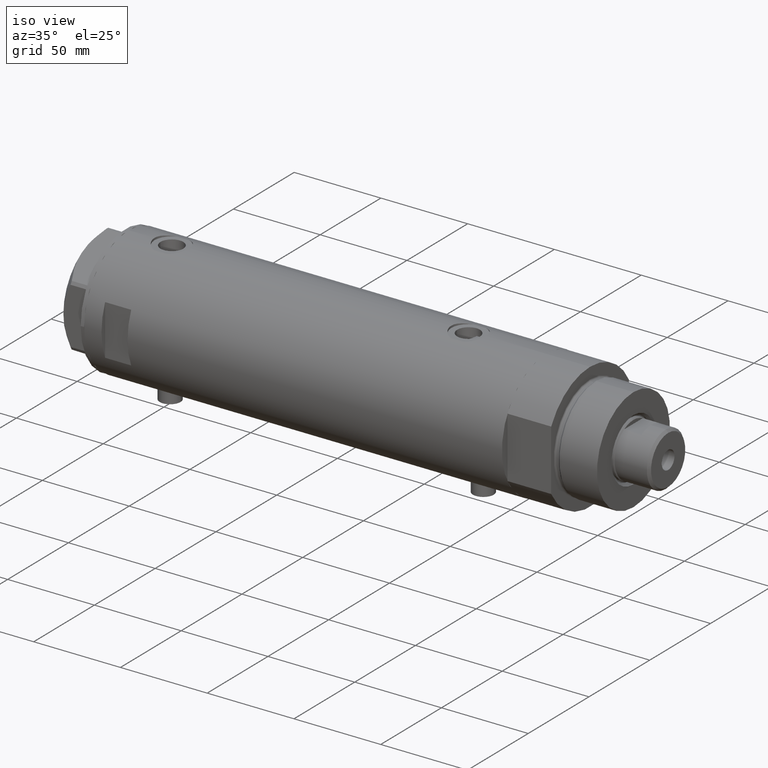
[diagram: clean part render]
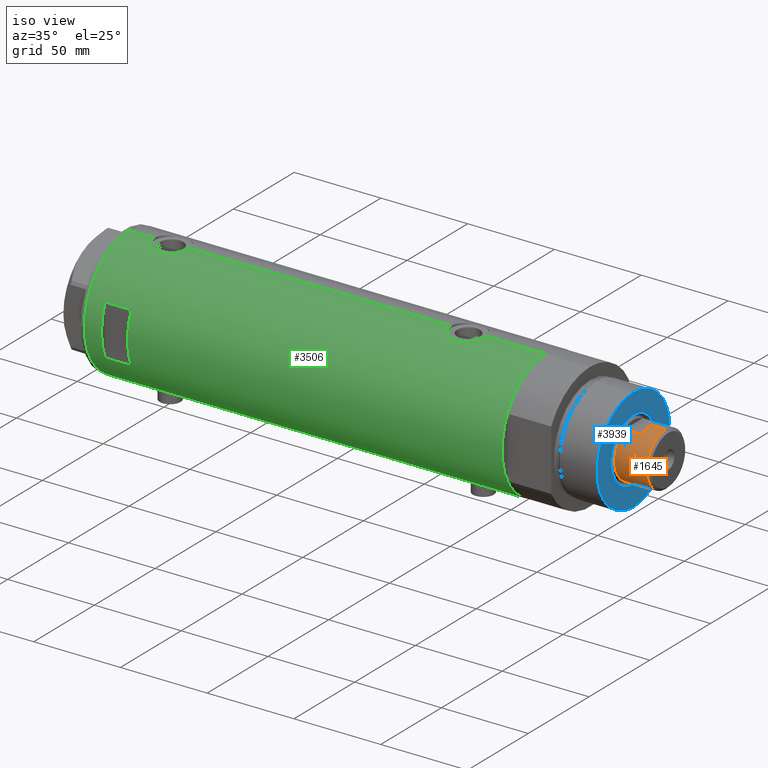
[diagram: same view with three faces highlighted in distinct colors, each labeled with its STEP entity id]
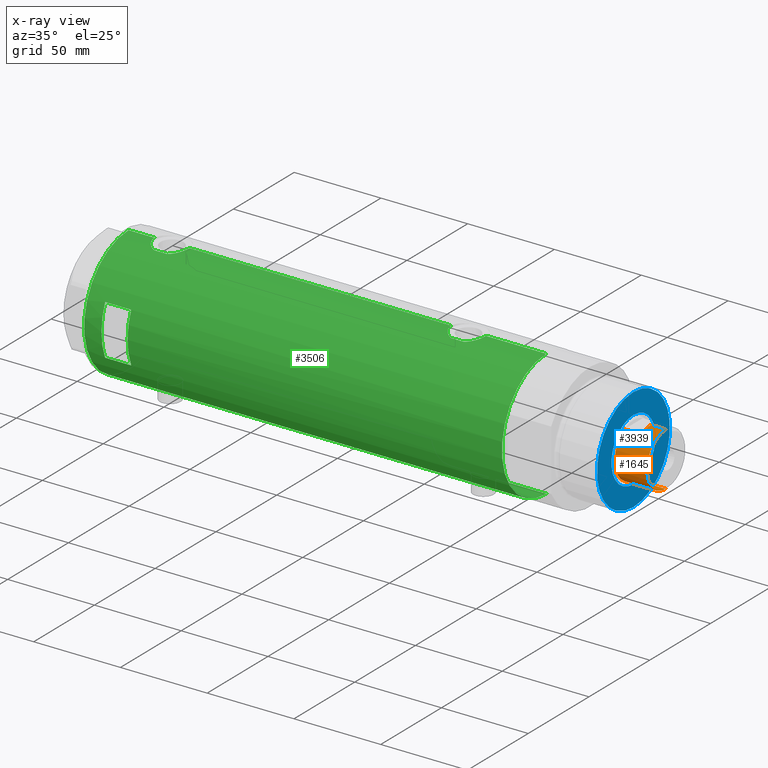
[diagram: x-ray of the same camera — body ghosted, the three highlighted faces saturated]
A machine part, iso view with three faces highlighted in distinct colors.
The next image is the same camera in x-ray (body ghosted, the three faces saturated) — at least one of them is partly hidden behind the body in this view.
Their STEP definitions:

[orange] entity #1645 — the highlighted cylindrical surface (edge-blend (fillet) strip) has radius 15.5 mm, axis along (-1, -0, 0).
#5 = CARTESIAN_POINT ( 'NONE',  ( 13.48630416385452691, -7.639999999999914415, 265.0000000000000000 ) ) ;
#47 = ORIENTED_EDGE ( 'NONE', *, *, #3844, .T. ) ;
#99 = CARTESIAN_POINT ( 'NONE',  ( 0.000000000000000000, 0.000000000000000000, 275.0000000000000000 ) ) ;
#136 = DIRECTION ( 'NONE',  ( -0.000000000000000000, -0.000000000000000000, -1.000000000000000000 ) ) ;
#168 = DIRECTION ( 'NONE',  ( 1.000000000000000000, 0.000000000000000000, 0.000000000000000000 ) ) ;
#195 = CARTESIAN_POINT ( 'NONE',  ( 0.000000000000000000, 0.000000000000000000, 265.0000000000000000 ) ) ;
#289 = CIRCLE ( 'NONE', #3616, 15.50000000000000000 ) ;
#352 = VERTEX_POINT ( 'NONE', #2432 ) ;
#480 = VERTEX_POINT ( 'NONE', #5 ) ;
#619 = DIRECTION ( 'NONE',  ( -0.000000000000000000, -0.000000000000000000, -1.000000000000000000 ) ) ;
#738 = DIRECTION ( 'NONE',  ( -0.000000000000000000, -0.000000000000000000, -1.000000000000000000 ) ) ;
#764 = EDGE_CURVE ( 'NONE', #4235, #480, #2945, .T. ) ;
#769 = ORIENTED_EDGE ( 'NONE', *, *, #764, .T. ) ;
#824 = DIRECTION ( 'NONE',  ( 1.000000000000000000, 0.000000000000000000, 0.000000000000000000 ) ) ;
#843 = EDGE_CURVE ( 'NONE', #352, #4235, #2325, .T. ) ;
#877 = CARTESIAN_POINT ( 'NONE',  ( 13.48630416385453046, -7.639999999999995239, 275.0000000000000000 ) ) ;
#996 = AXIS2_PLACEMENT_3D ( 'NONE', #195, #2254, #4346 ) ;
#1002 = VECTOR ( 'NONE', #4384, 1000.000000000000000 ) ;
#1079 = DIRECTION ( 'NONE',  ( -0.000000000000000000, -0.000000000000000000, -1.000000000000000000 ) ) ;
#1097 = VERTEX_POINT ( 'NONE', #2524 ) ;
#1098 = CARTESIAN_POINT ( 'NONE',  ( 0.000000000000000000, 0.000000000000000000, 275.0000000000000000 ) ) ;
#1117 = VERTEX_POINT ( 'NONE', #877 ) ;
#1146 = CARTESIAN_POINT ( 'NONE',  ( -13.48630416385452513, -7.639999999999921521, 265.0000000000000000 ) ) ;
#1174 = EDGE_CURVE ( 'NONE', #4404, #352, #3310, .T. ) ;
#1391 = ORIENTED_EDGE ( 'NONE', *, *, #2405, .F. ) ;
#1472 = DIRECTION ( 'NONE',  ( -1.000000000000000000, 0.000000000000000000, 0.000000000000000000 ) ) ;
#1489 = VECTOR ( 'NONE', #619, 1000.000000000000000 ) ;
#1645 = ADVANCED_FACE ( 'NONE', ( #3133 ), #3216, .T. ) ;
#1744 = ORIENTED_EDGE ( 'NONE', *, *, #3528, .T. ) ;
#1856 = VECTOR ( 'NONE', #136, 1000.000000000000000 ) ;
#2063 = EDGE_LOOP ( 'NONE', ( #2475, #47, #3859, #4340, #3364, #769, #1391, #1744 ) ) ;
#2084 = CIRCLE ( 'NONE', #2303, 15.49999999999999822 ) ;
#2091 = VERTEX_POINT ( 'NONE', #3412 ) ;
#2197 = CARTESIAN_POINT ( 'NONE',  ( 15.49999999999999822, 1.898202538678397163E-15, 283.5999999999999659 ) ) ;
#2254 = DIRECTION ( 'NONE',  ( 0.000000000000000000, 0.000000000000000000, 1.000000000000000000 ) ) ;
#2303 = AXIS2_PLACEMENT_3D ( 'NONE', #2937, #3621, #168 ) ;
#2325 = LINE ( 'NONE', #3060, #1002 ) ;
#2329 = CARTESIAN_POINT ( 'NONE',  ( 13.48630416385453046, -7.639999999999995239, 275.0000000000000000 ) ) ;
#2405 = EDGE_CURVE ( 'NONE', #1117, #480, #4057, .T. ) ;
#2432 = CARTESIAN_POINT ( 'NONE',  ( -13.48630416385452335, -7.640000000000004121, 275.0000000000000000 ) ) ;
#2475 = ORIENTED_EDGE ( 'NONE', *, *, #4389, .F. ) ;
#2492 = CARTESIAN_POINT ( 'NONE',  ( -15.49999999999999822, 0.000000000000000000, 275.0000000000000000 ) ) ;
#2524 = CARTESIAN_POINT ( 'NONE',  ( -15.49999999999999822, 0.000000000000000000, 283.5999999999999659 ) ) ;
#2582 = EDGE_CURVE ( 'NONE', #1097, #4404, #3584, .T. ) ;
#2686 = VECTOR ( 'NONE', #738, 1000.000000000000000 ) ;
#2841 = LINE ( 'NONE', #3904, #2686 ) ;
#2937 = CARTESIAN_POINT ( 'NONE',  ( 0.000000000000000000, 0.000000000000000000, 283.5999999999999659 ) ) ;
#2945 = CIRCLE ( 'NONE', #996, 15.49999999999999822 ) ;
#3060 = CARTESIAN_POINT ( 'NONE',  ( -13.48630416385452691, -7.640000000000001457, 275.0000000000000000 ) ) ;
#3133 = FACE_OUTER_BOUND ( 'NONE', #2063, .T. ) ;
#3216 = CYLINDRICAL_SURFACE ( 'NONE', #4172, 15.49999999999999822 ) ;
#3282 = DIRECTION ( 'NONE',  ( 0.000000000000000000, 0.000000000000000000, 1.000000000000000000 ) ) ;
#3310 = CIRCLE ( 'NONE', #3880, 15.50000000000000000 ) ;
#3364 = ORIENTED_EDGE ( 'NONE', *, *, #843, .T. ) ;
#3412 = CARTESIAN_POINT ( 'NONE',  ( 15.50000000000000178, 1.898202538678397557E-15, 275.0000000000000000 ) ) ;
#3528 = EDGE_CURVE ( 'NONE', #1117, #2091, #289, .T. ) ;
#3569 = DIRECTION ( 'NONE',  ( 1.000000000000000000, 0.000000000000000000, 0.000000000000000000 ) ) ;
#3584 = LINE ( 'NONE', #2492, #1856 ) ;
#3615 = CARTESIAN_POINT ( 'NONE',  ( 0.000000000000000000, 0.000000000000000000, 275.0000000000000000 ) ) ;
#3616 = AXIS2_PLACEMENT_3D ( 'NONE', #1098, #3929, #824 ) ;
#3621 = DIRECTION ( 'NONE',  ( 0.000000000000000000, 0.000000000000000000, -1.000000000000000000 ) ) ;
#3812 = VERTEX_POINT ( 'NONE', #2197 ) ;
#3844 = EDGE_CURVE ( 'NONE', #3812, #1097, #2084, .T. ) ;
#3858 = CARTESIAN_POINT ( 'NONE',  ( -15.50000000000000178, 0.000000000000000000, 275.0000000000000000 ) ) ;
#3859 = ORIENTED_EDGE ( 'NONE', *, *, #2582, .T. ) ;
#3880 = AXIS2_PLACEMENT_3D ( 'NONE', #3615, #3282, #3569 ) ;
#3904 = CARTESIAN_POINT ( 'NONE',  ( 15.49999999999999822, 1.898202538678397163E-15, 275.0000000000000000 ) ) ;
#3929 = DIRECTION ( 'NONE',  ( 0.000000000000000000, 0.000000000000000000, 1.000000000000000000 ) ) ;
#4057 = LINE ( 'NONE', #2329, #1489 ) ;
#4172 = AXIS2_PLACEMENT_3D ( 'NONE', #99, #1079, #1472 ) ;
#4235 = VERTEX_POINT ( 'NONE', #1146 ) ;
#4340 = ORIENTED_EDGE ( 'NONE', *, *, #1174, .T. ) ;
#4346 = DIRECTION ( 'NONE',  ( 1.000000000000000000, 0.000000000000000000, 0.000000000000000000 ) ) ;
#4384 = DIRECTION ( 'NONE',  ( -0.000000000000000000, -0.000000000000000000, -1.000000000000000000 ) ) ;
#4389 = EDGE_CURVE ( 'NONE', #3812, #2091, #2841, .T. ) ;
#4404 = VERTEX_POINT ( 'NONE', #3858 ) ;

[blue] entity #3939 — the highlighted planar face has unit normal (1, 0, -0).
#23 = ORIENTED_EDGE ( 'NONE', *, *, #3037, .T. ) ;
#150 = FACE_OUTER_BOUND ( 'NONE', #1971, .T. ) ;
#553 = ORIENTED_EDGE ( 'NONE', *, *, #4250, .T. ) ;
#556 = DIRECTION ( 'NONE',  ( 1.000000000000000000, 0.000000000000000000, 0.000000000000000000 ) ) ;
#719 = CARTESIAN_POINT ( 'NONE',  ( 0.000000000000000000, 0.000000000000000000, 50.19999999999999574 ) ) ;
#854 = CARTESIAN_POINT ( 'NONE',  ( 0.000000000000000000, 0.000000000000000000, 50.19999999999999574 ) ) ;
#863 = AXIS2_PLACEMENT_3D ( 'NONE', #854, #2916, #4294 ) ;
#930 = CARTESIAN_POINT ( 'NONE',  ( 18.04999999999996874, 0.000000000000000000, 50.19999999999999574 ) ) ;
#976 = DIRECTION ( 'NONE',  ( 1.000000000000000000, 0.000000000000000000, 0.000000000000000000 ) ) ;
#1005 = DIRECTION ( 'NONE',  ( 0.000000000000000000, 0.000000000000000000, 1.000000000000000000 ) ) ;
#1025 = DIRECTION ( 'NONE',  ( -0.000000000000000000, -0.000000000000000000, -1.000000000000000000 ) ) ;
#1104 = CARTESIAN_POINT ( 'NONE',  ( 0.000000000000000000, 0.000000000000000000, 50.19999999999999574 ) ) ;
#1180 = VERTEX_POINT ( 'NONE', #1566 ) ;
#1406 = VERTEX_POINT ( 'NONE', #2117 ) ;
#1429 = AXIS2_PLACEMENT_3D ( 'NONE', #2264, #2566, #556 ) ;
#1462 = DIRECTION ( 'NONE',  ( -0.000000000000000000, -0.000000000000000000, -1.000000000000000000 ) ) ;
#1522 = PLANE ( 'NONE',  #863 ) ;
#1566 = CARTESIAN_POINT ( 'NONE',  ( -18.04999999999996874, 2.210487472460968951E-15, 50.19999999999999574 ) ) ;
#1577 = CIRCLE ( 'NONE', #3841, 18.04999999999996874 ) ;
#1971 = EDGE_LOOP ( 'NONE', ( #2196, #4054 ) ) ;
#2057 = DIRECTION ( 'NONE',  ( 1.000000000000000000, 0.000000000000000000, 0.000000000000000000 ) ) ;
#2080 = AXIS2_PLACEMENT_3D ( 'NONE', #4077, #1025, #976 ) ;
#2117 = CARTESIAN_POINT ( 'NONE',  ( 30.00000000000000000, 3.673940397442058389E-15, 50.19999999999999574 ) ) ;
#2131 = CARTESIAN_POINT ( 'NONE',  ( -30.00000000000000000, 0.000000000000000000, 50.19999999999999574 ) ) ;
#2194 = VERTEX_POINT ( 'NONE', #930 ) ;
#2196 = ORIENTED_EDGE ( 'NONE', *, *, #2769, .T. ) ;
#2264 = CARTESIAN_POINT ( 'NONE',  ( 0.000000000000000000, 0.000000000000000000, 50.19999999999999574 ) ) ;
#2372 = AXIS2_PLACEMENT_3D ( 'NONE', #719, #1005, #2057 ) ;
#2483 = DIRECTION ( 'NONE',  ( 1.000000000000000000, 0.000000000000000000, 0.000000000000000000 ) ) ;
#2516 = CIRCLE ( 'NONE', #2080, 18.04999999999996874 ) ;
#2566 = DIRECTION ( 'NONE',  ( 0.000000000000000000, 0.000000000000000000, 1.000000000000000000 ) ) ;
#2769 = EDGE_CURVE ( 'NONE', #3731, #1406, #3600, .T. ) ;
#2916 = DIRECTION ( 'NONE',  ( 0.000000000000000000, 0.000000000000000000, 1.000000000000000000 ) ) ;
#3037 = EDGE_CURVE ( 'NONE', #2194, #1180, #2516, .T. ) ;
#3112 = CIRCLE ( 'NONE', #1429, 30.00000000000000000 ) ;
#3266 = FACE_BOUND ( 'NONE', #4174, .T. ) ;
#3600 = CIRCLE ( 'NONE', #2372, 30.00000000000000000 ) ;
#3613 = EDGE_CURVE ( 'NONE', #1406, #3731, #3112, .T. ) ;
#3731 = VERTEX_POINT ( 'NONE', #2131 ) ;
#3841 = AXIS2_PLACEMENT_3D ( 'NONE', #1104, #1462, #2483 ) ;
#3939 = ADVANCED_FACE ( 'NONE', ( #3266, #150 ), #1522, .T. ) ;
#4054 = ORIENTED_EDGE ( 'NONE', *, *, #3613, .T. ) ;
#4077 = CARTESIAN_POINT ( 'NONE',  ( 0.000000000000000000, 0.000000000000000000, 50.19999999999999574 ) ) ;
#4174 = EDGE_LOOP ( 'NONE', ( #23, #553 ) ) ;
#4250 = EDGE_CURVE ( 'NONE', #1180, #2194, #1577, .T. ) ;
#4294 = DIRECTION ( 'NONE',  ( 1.000000000000000000, 0.000000000000000000, -0.000000000000000000 ) ) ;

[green] entity #3506 — the highlighted cylindrical surface (partial cylindrical patch) has radius 36.5 mm, axis along (-1, -0, 0).
#21 = DIRECTION ( 'NONE',  ( 1.000000000000000000, 0.000000000000000000, 0.000000000000000000 ) ) ;
#39 = CARTESIAN_POINT ( 'NONE',  ( 36.48988302519020266, -0.9927202255321166957, -65.63673010588698276 ) ) ;
#54 = ORIENTED_EDGE ( 'NONE', *, *, #1368, .F. ) ;
#96 = FACE_OUTER_BOUND ( 'NONE', #2978, .T. ) ;
#97 = CARTESIAN_POINT ( 'NONE',  ( -35.96095902952617251, -6.249754054240900913, -84.51658765420468455 ) ) ;
#117 = FACE_BOUND ( 'NONE', #1981, .T. ) ;
#121 = CARTESIAN_POINT ( 'NONE',  ( 36.18674680775578167, -4.776679548204626258, 104.1889231693125026 ) ) ;
#154 = B_SPLINE_CURVE_WITH_KNOTS ( 'NONE', 3,
 ( #527, #1268, #252, #2652, #2206, #4034, #933, #2946, #2308, #2609, #3298, #2924, #3707, #1581, #1195, #3966, #1625, #597, #2236, #3631, #1897, #1967, #3992, #887, #1722, #3818, #2013, #4079, #375, #3087, #2078, #679, #1652, #3778, #345, #3746, #1333, #3414, #3115, #1311, #2727, #3436, #4396, #2704 ),
 .UNSPECIFIED., .F., .F.,
 ( 4, 2, 2, 2, 2, 2, 2, 2, 2, 2, 2, 2, 2, 2, 2, 2, 2, 2, 2, 2, 2, 4 ),
 ( 0.01957644481942643136, 0.02079966591703043266, 0.02202288701463443049, 0.02263449756343642941, 0.02324610811223842832, 0.02446932920984242615, 0.02569255030744642398, 0.02691577140505042529, 0.02752738195385242420, 0.02813899250265442659, 0.02936221360025846605, 0.03058543469786250205, 0.03119704524666452178, 0.03180865579546654498, 0.03303187689307057751, 0.03364348744187262152, 0.03425509799067465166, 0.03547831908827869807, 0.03670154018588274447, 0.03731315073468477461, 0.03792476128348679781, 0.03914798238109084422 ),
 .UNSPECIFIED. ) ;
#156 = CARTESIAN_POINT ( 'NONE',  ( 36.50000000000000000, 4.344614706140975428E-19, -65.60000000000000853 ) ) ;
#184 = VERTEX_POINT ( 'NONE', #2634 ) ;
#215 = CARTESIAN_POINT ( 'NONE',  ( -36.09514898390870030, -5.426114745500164815, -80.97161347053862812 ) ) ;
#217 = CARTESIAN_POINT ( 'NONE',  ( 36.21540437201188922, -4.554727782332258279, 104.3059762908862638 ) ) ;
#252 = CARTESIAN_POINT ( 'NONE',  ( -36.49315367594273596, -0.8144497809045447845, 90.18960214445247914 ) ) ;
#260 = CARTESIAN_POINT ( 'NONE',  ( -36.19599073318030236, -4.702920041824403263, -79.97846168323422944 ) ) ;
#267 = CIRCLE ( 'NONE', #2503, 36.50000000000000000 ) ;
#275 = CARTESIAN_POINT ( 'NONE',  ( 35.52320828895289395, -8.411622242316134646, 89.90227134055388092 ) ) ;
#290 = DIRECTION ( 'NONE',  ( 0.000000000000000000, 0.000000000000000000, 1.000000000000000000 ) ) ;
#292 = CARTESIAN_POINT ( 'NONE',  ( -36.01639592019625979, -5.922235714778421034, -82.09203197573087607 ) ) ;
#309 = CARTESIAN_POINT ( 'NONE',  ( 14.49137674618942739, -33.50000000000000000, 110.3999999999999915 ) ) ;
#339 = CARTESIAN_POINT ( 'NONE',  ( 36.50000000000000000, 0.000000000000000000, -120.4000000000000057 ) ) ;
#345 = CARTESIAN_POINT ( 'NONE',  ( -36.30107494031872051, -3.820993528321233068, 101.3630615353631157 ) ) ;
#350 = CARTESIAN_POINT ( 'NONE',  ( -36.50000000000000000, 4.469960816887838430E-15, -120.4000000000000057 ) ) ;
#355 = CIRCLE ( 'NONE', #4026, 36.50000000000000000 ) ;
#364 = ORIENTED_EDGE ( 'NONE', *, *, #3036, .T. ) ;
#375 = CARTESIAN_POINT ( 'NONE',  ( -36.09514898390870030, -5.426114745500164815, 99.52838652946141451 ) ) ;
#391 = VERTEX_POINT ( 'NONE', #4137 ) ;
#401 = LINE ( 'NONE', #339, #1708 ) ;
#446 = CARTESIAN_POINT ( 'NONE',  ( 0.000000000000000000, 0.000000000000000000, -120.4000000000000057 ) ) ;
#447 = CARTESIAN_POINT ( 'NONE',  ( -36.35061318816141096, -3.303361544904982239, -89.40964041943020391 ) ) ;
#468 = CARTESIAN_POINT ( 'NONE',  ( 36.09633718678917802, -5.417295330713078449, -67.19085132654788595 ) ) ;
#469 = LINE ( 'NONE', #3596, #3034 ) ;
#485 = CARTESIAN_POINT ( 'NONE',  ( -36.30176144752229561, -3.814344296723636951, -89.06801701950256245 ) ) ;
#508 = CARTESIAN_POINT ( 'NONE',  ( -36.50000000000000000, 1.603939656238031057E-15, -77.85000000000000853 ) ) ;
#521 = CARTESIAN_POINT ( 'NONE',  ( 36.48960339336947101, -1.002724032967601708, -85.56224865973499050 ) ) ;
#527 = CARTESIAN_POINT ( 'NONE',  ( -36.50000000000000000, 4.469960493350315609E-15, 90.15000000000000568 ) ) ;
#558 = CARTESIAN_POINT ( 'NONE',  ( -35.96087392089862789, -6.250243747806517369, -83.69082509223819955 ) ) ;
#585 = CARTESIAN_POINT ( 'NONE',  ( -36.14410773716529235, -5.085921866747754372, -80.46164121579529649 ) ) ;
#594 = CARTESIAN_POINT ( 'NONE',  ( 36.44881677724178104, -1.995085670027227032, 85.58819654630534046 ) ) ;
#597 = CARTESIAN_POINT ( 'NONE',  ( -35.99695583620881933, -6.039273428153905776, 94.77775555012246400 ) ) ;
#617 = VERTEX_POINT ( 'NONE', #1107 ) ;
#638 = VECTOR ( 'NONE', #2386, 1000.000000000000000 ) ;
#652 = LINE ( 'NONE', #350, #1356 ) ;
#661 = CARTESIAN_POINT ( 'NONE',  ( -36.43335814606993495, -2.212659578761325463, -78.25123600830491455 ) ) ;
#679 = CARTESIAN_POINT ( 'NONE',  ( -36.19599073318030236, -4.702920041824403263, 100.5215383167658274 ) ) ;
#749 = ORIENTED_EDGE ( 'NONE', *, *, #2948, .T. ) ;
#789 = DIRECTION ( 'NONE',  ( 0.000000000000000000, 0.000000000000000000, 1.000000000000000000 ) ) ;
#825 = CARTESIAN_POINT ( 'NONE',  ( -36.49999999999999289, -0.4082012689449562859, -90.34999999999998010 ) ) ;
#875 = EDGE_CURVE ( 'NONE', #1343, #1212, #355, .T. ) ;
#878 = CARTESIAN_POINT ( 'NONE',  ( 36.50000000000000000, 4.344614706140975428E-19, 105.4000000000000057 ) ) ;
#883 = CARTESIAN_POINT ( 'NONE',  ( 35.29999999999999716, -9.282241108697837362, -79.32021504754763441 ) ) ;
#887 = CARTESIAN_POINT ( 'NONE',  ( -35.98821803976956346, -6.090959022952117330, 97.81573883149417270 ) ) ;
#895 = CARTESIAN_POINT ( 'NONE',  ( -36.02823773219768810, -5.849994928883552880, -86.30955101485642444 ) ) ;
#915 = CARTESIAN_POINT ( 'NONE',  ( -35.96794010939611752, -6.209972807992079069, -83.28444451008648741 ) ) ;
#916 = VECTOR ( 'NONE', #2777, 1000.000000000000000 ) ;
#933 = CARTESIAN_POINT ( 'NONE',  ( -36.39558535855674393, -2.764807686268001774, 90.79105881454391636 ) ) ;
#943 = VERTEX_POINT ( 'NONE', #3080 ) ;
#951 = CARTESIAN_POINT ( 'NONE',  ( 0.000000000000000000, 0.000000000000000000, 110.3999999999999915 ) ) ;
#979 = CARTESIAN_POINT ( 'NONE',  ( -14.49137674618942739, -33.50000000000000000, 95.40000000000000568 ) ) ;
#1011 = CARTESIAN_POINT ( 'NONE',  ( 35.69273631926343882, -7.635692914629149008, -82.06200195651489082 ) ) ;
#1018 = EDGE_CURVE ( 'NONE', #2402, #2934, #401, .T. ) ;
#1034 = DIRECTION ( 'NONE',  ( 0.000000000000000000, 0.000000000000000000, 1.000000000000000000 ) ) ;
#1035 = EDGE_CURVE ( 'NONE', #3566, #2764, #3468, .T. ) ;
#1049 = LINE ( 'NONE', #2343, #2366 ) ;
#1054 = LINE ( 'NONE', #3809, #3232 ) ;
#1060 = EDGE_CURVE ( 'NONE', #1212, #1812, #1054, .T. ) ;
#1107 = CARTESIAN_POINT ( 'NONE',  ( 35.29999999999999716, -9.282241108697837362, 99.12021504754764578 ) ) ;
#1135 = VECTOR ( 'NONE', #1896, 1000.000000000000000 ) ;
#1163 = CARTESIAN_POINT ( 'NONE',  ( 36.00092304812866217, -6.029438422680412302, -67.60691844426347075 ) ) ;
#1183 = CARTESIAN_POINT ( 'NONE',  ( -36.50000000000000000, 4.469960493350315609E-15, -90.35000000000000853 ) ) ;
#1195 = CARTESIAN_POINT ( 'NONE',  ( -36.06605150775667568, -5.613853192123348101, 93.62234311727458191 ) ) ;
#1197 = EDGE_CURVE ( 'NONE', #3659, #3954, #4414, .T. ) ;
#1212 = VERTEX_POINT ( 'NONE', #3008 ) ;
#1236 = CARTESIAN_POINT ( 'NONE',  ( 35.39807338191549491, -8.909271871950329214, 100.0508038273278544 ) ) ;
#1240 = CARTESIAN_POINT ( 'NONE',  ( 35.39807338191549491, -8.909271871950329214, -70.94919617267213141 ) ) ;
#1245 = CARTESIAN_POINT ( 'NONE',  ( 35.29999999999999716, -9.282241108697837362, 91.67978495245237980 ) ) ;
#1259 = ORIENTED_EDGE ( 'NONE', *, *, #1676, .F. ) ;
#1265 = CARTESIAN_POINT ( 'NONE',  ( 36.12792682573228831, -5.214735277442335004, 86.85306882011300900 ) ) ;
#1268 = CARTESIAN_POINT ( 'NONE',  ( -36.49999999999999289, -0.4082012689449562859, 90.15000000000001990 ) ) ;
#1299 = CARTESIAN_POINT ( 'NONE',  ( -36.06543684817881257, -5.617774235967367247, -81.33045552028302438 ) ) ;
#1308 = EDGE_CURVE ( 'NONE', #3763, #2638, #154, .T. ) ;
#1309 = CARTESIAN_POINT ( 'NONE',  ( 0.000000000000000000, 0.000000000000000000, -120.4000000000000057 ) ) ;
#1311 = CARTESIAN_POINT ( 'NONE',  ( -36.46417279006304568, -1.628689148039109247, 102.4375393869382123 ) ) ;
#1320 = CARTESIAN_POINT ( 'NONE',  ( -36.26616882068471170, -4.135065845178865551, -79.39584944059912175 ) ) ;
#1333 = CARTESIAN_POINT ( 'NONE',  ( -36.39621039793029666, -2.776267550998806843, 102.0143075310678000 ) ) ;
#1343 = VERTEX_POINT ( 'NONE', #309 ) ;
#1354 = CARTESIAN_POINT ( 'NONE',  ( 36.50000000000000711, -0.5031001875915692700, 85.40000000000004832 ) ) ;
#1356 = VECTOR ( 'NONE', #3419, 1000.000000000000000 ) ;
#1357 = CARTESIAN_POINT ( 'NONE',  ( 14.49137674618942739, -33.50000000000000000, -120.4000000000000057 ) ) ;
#1366 = CARTESIAN_POINT ( 'NONE',  ( 35.83108131285856501, -6.958268797611358636, -82.78630783372825874 ) ) ;
#1368 = EDGE_CURVE ( 'NONE', #3899, #1343, #3478, .T. ) ;
#1413 = CARTESIAN_POINT ( 'NONE',  ( 36.44931971524465553, -1.985988150549293341, -65.78633139468234958 ) ) ;
#1415 = DIRECTION ( 'NONE',  ( 0.000000000000000000, 0.000000000000000000, 1.000000000000000000 ) ) ;
#1435 = DIRECTION ( 'NONE',  ( -0.000000000000000000, -0.000000000000000000, -1.000000000000000000 ) ) ;
#1454 = ORIENTED_EDGE ( 'NONE', *, *, #1035, .F. ) ;
#1460 = CARTESIAN_POINT ( 'NONE',  ( 36.50000000000000711, -0.4962708696651116913, -65.60000000000000853 ) ) ;
#1476 = LINE ( 'NONE', #1866, #3689 ) ;
#1493 = DIRECTION ( 'NONE',  ( 0.000000000000000000, 0.000000000000000000, 1.000000000000000000 ) ) ;
#1517 = CARTESIAN_POINT ( 'NONE',  ( 36.44931971524465553, -1.985988150549293341, 105.2136686053176078 ) ) ;
#1521 = CARTESIAN_POINT ( 'NONE',  ( 36.12724769814495573, -5.207618053557754756, -67.05935879511537223 ) ) ;
#1581 = CARTESIAN_POINT ( 'NONE',  ( -36.09582946723050867, -5.421573071064194060, 93.26391721629518372 ) ) ;
#1625 = CARTESIAN_POINT ( 'NONE',  ( -36.01675918113430441, -5.920026275461277798, 94.38560443482110429 ) ) ;
#1632 = CARTESIAN_POINT ( 'NONE',  ( -35.98821803976956346, -6.090959022952117330, -82.68426116850582730 ) ) ;
#1652 = CARTESIAN_POINT ( 'NONE',  ( -36.21356728133255842, -4.566014386638764577, 100.6726266076474730 ) ) ;
#1663 = ORIENTED_EDGE ( 'NONE', *, *, #2427, .F. ) ;
#1676 = EDGE_CURVE ( 'NONE', #1812, #3899, #267, .T. ) ;
#1681 = CARTESIAN_POINT ( 'NONE',  ( 35.93363298843768661, -6.415574104180976178, -83.28651472888894602 ) ) ;
#1682 = CARTESIAN_POINT ( 'NONE',  ( -36.47262891311153510, -1.427622242603855396, -78.01175370788301677 ) ) ;
#1699 = CARTESIAN_POINT ( 'NONE',  ( 36.50000000000000000, 0.000000000000000000, 120.4000000000000057 ) ) ;
#1701 = ORIENTED_EDGE ( 'NONE', *, *, #2796, .F. ) ;
#1705 = EDGE_CURVE ( 'NONE', #1998, #617, #2728, .T. ) ;
#1708 = VECTOR ( 'NONE', #1034, 1000.000000000000000 ) ;
#1722 = CARTESIAN_POINT ( 'NONE',  ( -35.99659093586380010, -6.041447834568799635, 98.01422412014827046 ) ) ;
#1764 = CARTESIAN_POINT ( 'NONE',  ( 36.50000000000000000, 4.344614706140975428E-19, -65.60000000000000853 ) ) ;
#1791 = EDGE_CURVE ( 'NONE', #4307, #184, #2055, .T. ) ;
#1800 = ORIENTED_EDGE ( 'NONE', *, *, #4299, .F. ) ;
#1812 = VERTEX_POINT ( 'NONE', #979 ) ;
#1820 = CARTESIAN_POINT ( 'NONE',  ( -36.01675918113430441, -5.920026275461277798, -86.11439556517892413 ) ) ;
#1866 = CARTESIAN_POINT ( 'NONE',  ( -36.50000000000000000, 4.469960816887838430E-15, -120.4000000000000057 ) ) ;
#1884 = DIRECTION ( 'NONE',  ( 1.776356839400250465E-15, 1.000000000000000000, 4.562560375171875891E-15 ) ) ;
#1896 = DIRECTION ( 'NONE',  ( 0.000000000000000000, 0.000000000000000000, 1.000000000000000000 ) ) ;
#1897 = CARTESIAN_POINT ( 'NONE',  ( -35.96095902952617251, -6.249754054240900913, 95.98341234579532966 ) ) ;
#1926 = VERTEX_POINT ( 'NONE', #1245 ) ;
#1932 = CARTESIAN_POINT ( 'NONE',  ( 36.34247810649306132, -3.420510937483959513, 104.8098651840172977 ) ) ;
#1967 = CARTESIAN_POINT ( 'NONE',  ( -35.96087392089862789, -6.250243747806517369, 96.80917490776182888 ) ) ;
#1981 = EDGE_LOOP ( 'NONE', ( #1259, #4195, #2780, #54 ) ) ;
#1983 = CARTESIAN_POINT ( 'NONE',  ( 36.50000000000000000, 0.000000000000000000, 85.40000000000001990 ) ) ;
#1993 = CARTESIAN_POINT ( 'NONE',  ( -35.99659093586380010, -6.041447834568799635, -82.48577587985177217 ) ) ;
#1998 = VERTEX_POINT ( 'NONE', #2882 ) ;
#2013 = CARTESIAN_POINT ( 'NONE',  ( -36.02782481185206365, -5.852531070448506512, 98.60277008952193967 ) ) ;
#2022 = CARTESIAN_POINT ( 'NONE',  ( -36.44454782745417276, -2.020757099930494682, -78.18214135579003710 ) ) ;
#2035 = DIRECTION ( 'NONE',  ( 1.000000000000000000, 0.000000000000000000, 0.000000000000000000 ) ) ;
#2042 = CARTESIAN_POINT ( 'NONE',  ( 36.50000000000000711, -0.5031001875915692700, -85.59999999999999432 ) ) ;
#2055 = LINE ( 'NONE', #4106, #638 ) ;
#2074 = LINE ( 'NONE', #3475, #3467 ) ;
#2078 = CARTESIAN_POINT ( 'NONE',  ( -36.16125812922425098, -4.962923794285024393, 100.2044608591076127 ) ) ;
#2119 = ORIENTED_EDGE ( 'NONE', *, *, #1308, .F. ) ;
#2151 = CYLINDRICAL_SURFACE ( 'NONE', #2675, 36.50000000000000000 ) ;
#2174 = CARTESIAN_POINT ( 'NONE',  ( 36.41918031349423757, -2.473644131148923009, 105.1018834546319027 ) ) ;
#2192 = CARTESIAN_POINT ( 'NONE',  ( -36.40915499150419521, -2.580495338846545472, -89.79605013355480025 ) ) ;
#2204 = CARTESIAN_POINT ( 'NONE',  ( 36.50000000000000000, 0.000000000000000000, 85.40000000000001990 ) ) ;
#2206 = CARTESIAN_POINT ( 'NONE',  ( -36.44621655743049615, -2.016281777336074832, 90.47017023300885796 ) ) ;
#2219 = CARTESIAN_POINT ( 'NONE',  ( -36.09582946723050867, -5.421573071064194060, -87.23608278370488733 ) ) ;
#2221 = CARTESIAN_POINT ( 'NONE',  ( 35.52323553852023963, -8.411295122831250026, 100.8975239295108821 ) ) ;
#2236 = CARTESIAN_POINT ( 'NONE',  ( -35.98855750525641639, -6.088954600884530777, 94.97569773849834007 ) ) ;
#2242 = EDGE_CURVE ( 'NONE', #1998, #2764, #1049, .T. ) ;
#2272 = CARTESIAN_POINT ( 'NONE',  ( 36.41856252531823657, -2.482507212621166470, -85.29956512846501937 ) ) ;
#2294 = CARTESIAN_POINT ( 'NONE',  ( -36.02782481185206365, -5.852531070448506512, -81.89722991047811718 ) ) ;
#2298 = CARTESIAN_POINT ( 'NONE',  ( 14.49137674618942739, -33.50000000000000000, 95.40000000000000568 ) ) ;
#2302 = B_SPLINE_CURVE_WITH_KNOTS ( 'NONE', 3,
 ( #1764, #1460, #39, #1413, #2854, #3308, #3287, #4317, #3935, #1521, #468, #1163, #4291, #2895, #2549, #3265, #1240, #3574 ),
 .UNSPECIFIED., .F., .F.,
 ( 4, 2, 2, 2, 2, 2, 2, 2, 4 ),
 ( 0.01190956515753145012, 0.01339852714138290227, 0.01488748912523435441, 0.01637645110908580656, 0.01712093210101153090, 0.01786541309293725871, 0.01935437507678870739, 0.02084333706064015260, 0.02382126102834301526 ),
 .UNSPECIFIED. ) ;
#2308 = CARTESIAN_POINT ( 'NONE',  ( -36.35061318816141096, -3.303361544904982239, 91.09035958056982452 ) ) ;
#2343 = CARTESIAN_POINT ( 'NONE',  ( 36.50000000000000000, 0.000000000000000000, -120.4000000000000057 ) ) ;
#2365 = CARTESIAN_POINT ( 'NONE',  ( -36.36656776002988778, -3.137002187003158582, -78.67863590726369694 ) ) ;
#2366 = VECTOR ( 'NONE', #290, 1000.000000000000000 ) ;
#2386 = DIRECTION ( 'NONE',  ( 0.000000000000000000, 0.000000000000000000, 1.000000000000000000 ) ) ;
#2392 = CARTESIAN_POINT ( 'NONE',  ( 36.18850502651835654, -4.779575967213809840, -84.39779152890152147 ) ) ;
#2402 = VERTEX_POINT ( 'NONE', #156 ) ;
#2406 = CARTESIAN_POINT ( 'NONE',  ( 36.29527920868844859, -3.886508670267145416, 86.17283724169139703 ) ) ;
#2427 = EDGE_CURVE ( 'NONE', #1926, #2934, #3184, .T. ) ;
#2496 = CARTESIAN_POINT ( 'NONE',  ( 0.000000000000000000, 0.000000000000000000, 120.4000000000000057 ) ) ;
#2503 = AXIS2_PLACEMENT_3D ( 'NONE', #3593, #2983, #1884 ) ;
#2504 = DIRECTION ( 'NONE',  ( 0.000000000000000000, 0.000000000000000000, 1.000000000000000000 ) ) ;
#2505 = EDGE_CURVE ( 'NONE', #1926, #617, #2074, .T. ) ;
#2518 = CARTESIAN_POINT ( 'NONE',  ( -36.50000000000000000, 1.603939656238031057E-15, 102.6500000000000199 ) ) ;
#2549 = CARTESIAN_POINT ( 'NONE',  ( 35.72583162417570435, -7.484316398521980496, -68.94957356280497152 ) ) ;
#2567 = CARTESIAN_POINT ( 'NONE',  ( -36.16096637594732499, -4.968588355849258953, -87.91334492817760804 ) ) ;
#2568 = CARTESIAN_POINT ( 'NONE',  ( 35.79638309643555516, -7.141827709208434349, 102.4170192696955013 ) ) ;
#2572 = DIRECTION ( 'NONE',  ( 0.000000000000000000, 0.000000000000000000, 1.000000000000000000 ) ) ;
#2587 = CIRCLE ( 'NONE', #3398, 36.50000000000000000 ) ;
#2596 = CARTESIAN_POINT ( 'NONE',  ( 36.29582892817134621, -3.881628320031159873, 104.6293443453499066 ) ) ;
#2597 = VERTEX_POINT ( 'NONE', #3548 ) ;
#2609 = CARTESIAN_POINT ( 'NONE',  ( -36.30176144752229561, -3.814344296723636951, 91.43198298049746597 ) ) ;
#2614 = ORIENTED_EDGE ( 'NONE', *, *, #2242, .T. ) ;
#2620 = CARTESIAN_POINT ( 'NONE',  ( -36.19666146462960654, -4.704890678739094945, -88.23429859510781625 ) ) ;
#2628 = CARTESIAN_POINT ( 'NONE',  ( 36.29527920868844859, -3.886508670267145416, -84.82716275830861719 ) ) ;
#2634 = CARTESIAN_POINT ( 'NONE',  ( 35.29999999999999716, -9.282241108697837362, -71.87978495245236843 ) ) ;
#2638 = VERTEX_POINT ( 'NONE', #2518 ) ;
#2644 = DIRECTION ( 'NONE',  ( 1.000000000000000000, 0.000000000000000000, 0.000000000000000000 ) ) ;
#2649 = CARTESIAN_POINT ( 'NONE',  ( 35.79656810172926384, -7.133411935499478496, 88.38745121442323693 ) ) ;
#2652 = CARTESIAN_POINT ( 'NONE',  ( -36.46614432713124643, -1.622933015999963313, 90.35033402613153442 ) ) ;
#2668 = CARTESIAN_POINT ( 'NONE',  ( -36.16125812922425098, -4.962923794285024393, -80.29553914089240152 ) ) ;
#2675 = AXIS2_PLACEMENT_3D ( 'NONE', #446, #1493, #2830 ) ;
#2680 = CARTESIAN_POINT ( 'NONE',  ( 35.93363298843768661, -6.415574104180976178, 87.71348527111109661 ) ) ;
#2704 = CARTESIAN_POINT ( 'NONE',  ( -36.50000000000000000, 1.603939656238031057E-15, 102.6500000000000199 ) ) ;
#2727 = CARTESIAN_POINT ( 'NONE',  ( -36.47262891311153510, -1.427622242603855396, 102.4882462921170259 ) ) ;
#2728 = B_SPLINE_CURVE_WITH_KNOTS ( 'NONE', 3,
 ( #878, #3953, #2891, #1517, #2174, #1932, #2596, #217, #121, #2913, #3981, #4269, #3334, #2568, #4339, #2221, #1236, #3617 ),
 .UNSPECIFIED., .F., .F.,
 ( 4, 2, 2, 2, 2, 2, 2, 2, 4 ),
 ( 0.01190956515753145012, 0.01339852714138290227, 0.01488748912523435441, 0.01637645110908580656, 0.01712093210101153090, 0.01786541309293725871, 0.01935437507678870739, 0.02084333706064015260, 0.02382126102834301526 ),
 .UNSPECIFIED. ) ;
#2764 = VERTEX_POINT ( 'NONE', #1699 ) ;
#2777 = DIRECTION ( 'NONE',  ( 0.000000000000000000, 0.000000000000000000, 1.000000000000000000 ) ) ;
#2780 = ORIENTED_EDGE ( 'NONE', *, *, #875, .F. ) ;
#2793 = ORIENTED_EDGE ( 'NONE', *, *, #1197, .F. ) ;
#2796 = EDGE_CURVE ( 'NONE', #391, #3659, #652, .T. ) ;
#2800 = ORIENTED_EDGE ( 'NONE', *, *, #3769, .F. ) ;
#2830 = DIRECTION ( 'NONE',  ( 1.000000000000000000, 0.000000000000000000, 0.000000000000000000 ) ) ;
#2854 = CARTESIAN_POINT ( 'NONE',  ( 36.41918031349423757, -2.473644131148923009, -65.89811654536809726 ) ) ;
#2867 = CARTESIAN_POINT ( 'NONE',  ( -35.98855750525641639, -6.088954600884530777, -85.52430226150170256 ) ) ;
#2882 = CARTESIAN_POINT ( 'NONE',  ( 36.50000000000000000, 4.344614706140975428E-19, 105.4000000000000057 ) ) ;
#2891 = CARTESIAN_POINT ( 'NONE',  ( 36.48988302519020266, -0.9927202255321166957, 105.3632698941130172 ) ) ;
#2895 = CARTESIAN_POINT ( 'NONE',  ( 35.79638309643555516, -7.141827709208434349, -68.58298073030452713 ) ) ;
#2912 = CARTESIAN_POINT ( 'NONE',  ( -35.96816095843705341, -6.208699946936198977, -84.92496377127787355 ) ) ;
#2913 = CARTESIAN_POINT ( 'NONE',  ( 36.12724769814495573, -5.207618053557754756, 103.9406412048846704 ) ) ;
#2915 = ORIENTED_EDGE ( 'NONE', *, *, #1791, .T. ) ;
#2924 = CARTESIAN_POINT ( 'NONE',  ( -36.19666146462960654, -4.704890678739094945, 92.26570140489218375 ) ) ;
#2932 = CARTESIAN_POINT ( 'NONE',  ( -36.49315367594273596, -0.8144497809045447845, -90.31039785554752086 ) ) ;
#2934 = VERTEX_POINT ( 'NONE', #2204 ) ;
#2939 = CARTESIAN_POINT ( 'NONE',  ( 35.52320828895289395, -8.411622242316134646, -81.09772865944610487 ) ) ;
#2946 = CARTESIAN_POINT ( 'NONE',  ( -36.36635911126388265, -3.125815113635437292, 90.98394399592098125 ) ) ;
#2948 = EDGE_CURVE ( 'NONE', #943, #2597, #3942, .T. ) ;
#2956 = CARTESIAN_POINT ( 'NONE',  ( -36.44621655743049615, -2.016281777336074832, -90.02982976699115625 ) ) ;
#2978 = EDGE_LOOP ( 'NONE', ( #1701, #364, #749, #1800, #2915, #2800, #4377, #1663, #3194, #3279, #2614, #1454, #4409, #2119, #3007, #2793 ) ) ;
#2983 = DIRECTION ( 'NONE',  ( -0.000000000000000000, -4.625929269271492422E-15, 1.000000000000000000 ) ) ;
#3007 = ORIENTED_EDGE ( 'NONE', *, *, #3376, .F. ) ;
#3008 = CARTESIAN_POINT ( 'NONE',  ( -14.49137674618942739, -33.50000000000000000, 110.3999999999999915 ) ) ;
#3034 = VECTOR ( 'NONE', #2504, 1000.000000000000000 ) ;
#3036 = EDGE_CURVE ( 'NONE', #391, #943, #2587, .T. ) ;
#3056 = CARTESIAN_POINT ( 'NONE',  ( -36.21356728133255842, -4.566014386638764577, -79.82737339235254126 ) ) ;
#3062 = CARTESIAN_POINT ( 'NONE',  ( 36.18850502651835654, -4.779575967213809840, 86.60220847109846432 ) ) ;
#3076 = CARTESIAN_POINT ( 'NONE',  ( -36.49297138689434661, -0.8222528563518530786, -77.89066887946569295 ) ) ;
#3080 = CARTESIAN_POINT ( 'NONE',  ( 36.50000000000000000, 0.000000000000000000, -120.4000000000000057 ) ) ;
#3087 = CARTESIAN_POINT ( 'NONE',  ( -36.14410773716529235, -5.085921866747754372, 100.0383587842047461 ) ) ;
#3097 = CARTESIAN_POINT ( 'NONE',  ( 35.39794035667548400, -8.909777761736840773, -80.24954159089453753 ) ) ;
#3111 = CARTESIAN_POINT ( 'NONE',  ( -36.50000000000000000, 4.469960493350315609E-15, -90.35000000000000853 ) ) ;
#3115 = CARTESIAN_POINT ( 'NONE',  ( -36.44454782745417276, -2.020757099930494682, 102.3178586442099913 ) ) ;
#3136 = CARTESIAN_POINT ( 'NONE',  ( -36.50000000000000000, 4.469960493350315609E-15, 90.15000000000000568 ) ) ;
#3184 = B_SPLINE_CURVE_WITH_KNOTS ( 'NONE', 3,
 ( #3385, #3432, #275, #3775, #4461, #2649, #3743, #2680, #4075, #1265, #3062, #2406, #4418, #3703, #594, #4439, #1354, #1983 ),
 .UNSPECIFIED., .F., .F.,
 ( 4, 2, 2, 2, 2, 2, 2, 2, 4 ),
 ( -0.01189883390545606531, -0.008924125429092034240, -0.008180448310001031675, -0.007436771190910029979, -0.005949416952728023983, -0.004462062714546017987, -0.002974708476364010257, -0.001487354238182005128, 1.734723475976807094E-18 ),
 .UNSPECIFIED. ) ;
#3194 = ORIENTED_EDGE ( 'NONE', *, *, #2505, .T. ) ;
#3220 = B_SPLINE_CURVE_WITH_KNOTS ( 'NONE', 3,
 ( #883, #3097, #2939, #1011, #4345, #3423, #1366, #1681, #3289, #4113, #2392, #2628, #3784, #2272, #4008, #521, #2042, #3340 ),
 .UNSPECIFIED., .F., .F.,
 ( 4, 2, 2, 2, 2, 2, 2, 2, 4 ),
 ( -0.01189883390545606531, -0.008924125429092034240, -0.008180448310001031675, -0.007436771190910029979, -0.005949416952728023983, -0.004462062714546017987, -0.002974708476364010257, -0.001487354238182005128, 1.734723475976807094E-18 ),
 .UNSPECIFIED. ) ;
#3232 = VECTOR ( 'NONE', #1435, 1000.000000000000000 ) ;
#3265 = CARTESIAN_POINT ( 'NONE',  ( 35.52323553852023963, -8.411295122831250026, -70.10247607048910368 ) ) ;
#3279 = ORIENTED_EDGE ( 'NONE', *, *, #1705, .F. ) ;
#3287 = CARTESIAN_POINT ( 'NONE',  ( 36.29582892817134621, -3.881628320031159873, -66.37065565465010764 ) ) ;
#3289 = CARTESIAN_POINT ( 'NONE',  ( 36.00068527486601511, -6.030855700422090848, -83.59201327127354375 ) ) ;
#3298 = CARTESIAN_POINT ( 'NONE',  ( -36.26692673949090562, -4.128477002029503851, 91.69000012567835256 ) ) ;
#3308 = CARTESIAN_POINT ( 'NONE',  ( 36.34247810649306132, -3.420510937483959513, -66.19013481598274495 ) ) ;
#3334 = CARTESIAN_POINT ( 'NONE',  ( 35.93373217836897737, -6.415110096330620237, 103.0870426635509176 ) ) ;
#3340 = CARTESIAN_POINT ( 'NONE',  ( 36.50000000000000000, 0.000000000000000000, -85.59999999999999432 ) ) ;
#3355 = CARTESIAN_POINT ( 'NONE',  ( -36.50000000000000000, 4.469960816887838430E-15, 120.4000000000000057 ) ) ;
#3376 = EDGE_CURVE ( 'NONE', #3954, #3763, #469, .T. ) ;
#3382 = DIRECTION ( 'NONE',  ( -0.000000000000000000, 0.000000000000000000, -1.000000000000000000 ) ) ;
#3385 = CARTESIAN_POINT ( 'NONE',  ( 35.29999999999999716, -9.282241108697837362, 91.67978495245237980 ) ) ;
#3398 = AXIS2_PLACEMENT_3D ( 'NONE', #1309, #4132, #2035 ) ;
#3414 = CARTESIAN_POINT ( 'NONE',  ( -36.43335814606993495, -2.212659578761325463, 102.2487639916951281 ) ) ;
#3419 = DIRECTION ( 'NONE',  ( 0.000000000000000000, 0.000000000000000000, 1.000000000000000000 ) ) ;
#3423 = CARTESIAN_POINT ( 'NONE',  ( 35.79656810172926384, -7.133411935499478496, -82.61254878557676307 ) ) ;
#3425 = CARTESIAN_POINT ( 'NONE',  ( -36.46417279006304568, -1.628689148039109247, -78.06246061306184458 ) ) ;
#3432 = CARTESIAN_POINT ( 'NONE',  ( 35.39794035667548400, -8.909777761736840773, 90.75045840910549089 ) ) ;
#3436 = CARTESIAN_POINT ( 'NONE',  ( -36.49297138689434661, -0.8222528563518530786, 102.6093311205343923 ) ) ;
#3467 = VECTOR ( 'NONE', #1415, 1000.000000000000000 ) ;
#3468 = CIRCLE ( 'NONE', #3823, 36.50000000000000000 ) ;
#3475 = CARTESIAN_POINT ( 'NONE',  ( 35.29999999999999716, -9.282241108697837362, -120.4000000000000057 ) ) ;
#3478 = LINE ( 'NONE', #1357, #916 ) ;
#3506 = ADVANCED_FACE ( 'NONE', ( #96, #117 ), #2151, .T. ) ;
#3548 = CARTESIAN_POINT ( 'NONE',  ( 36.50000000000000000, 0.000000000000000000, -85.59999999999999432 ) ) ;
#3552 = CARTESIAN_POINT ( 'NONE',  ( -36.26692673949090562, -4.128477002029503851, -88.80999987432169007 ) ) ;
#3566 = VERTEX_POINT ( 'NONE', #3355 ) ;
#3574 = CARTESIAN_POINT ( 'NONE',  ( 35.29999999999999716, -9.282241108697837362, -71.87978495245236843 ) ) ;
#3593 = CARTESIAN_POINT ( 'NONE',  ( 0.000000000000000000, 0.000000000000000000, 95.40000000000014779 ) ) ;
#3596 = CARTESIAN_POINT ( 'NONE',  ( -36.50000000000000000, 4.469960816887838430E-15, -120.4000000000000057 ) ) ;
#3603 = CARTESIAN_POINT ( 'NONE',  ( 36.50000000000000000, 0.000000000000000000, -120.4000000000000057 ) ) ;
#3617 = CARTESIAN_POINT ( 'NONE',  ( 35.29999999999999716, -9.282241108697837362, 99.12021504754764578 ) ) ;
#3631 = CARTESIAN_POINT ( 'NONE',  ( -35.96816095843705341, -6.208699946936198977, 95.57503622872209803 ) ) ;
#3659 = VERTEX_POINT ( 'NONE', #3111 ) ;
#3689 = VECTOR ( 'NONE', #2572, 1000.000000000000000 ) ;
#3703 = CARTESIAN_POINT ( 'NONE',  ( 36.41856252531823657, -2.482507212621166470, 85.70043487153495221 ) ) ;
#3707 = CARTESIAN_POINT ( 'NONE',  ( -36.16096637594732499, -4.968588355849258953, 92.58665507182242038 ) ) ;
#3714 = CARTESIAN_POINT ( 'NONE',  ( -36.50000000000001421, -0.4136690418839317762, -77.85000000000002274 ) ) ;
#3743 = CARTESIAN_POINT ( 'NONE',  ( 35.83108131285856501, -6.958268797611358636, 88.21369216627178389 ) ) ;
#3746 = CARTESIAN_POINT ( 'NONE',  ( -36.36656776002988778, -3.137002187003158582, 101.8213640927363457 ) ) ;
#3758 = CARTESIAN_POINT ( 'NONE',  ( 35.29999999999999716, -9.282241108697837362, -79.32021504754763441 ) ) ;
#3762 = CARTESIAN_POINT ( 'NONE',  ( -36.39621039793029666, -2.776267550998806843, -78.48569246893224260 ) ) ;
#3763 = VERTEX_POINT ( 'NONE', #3136 ) ;
#3769 = EDGE_CURVE ( 'NONE', #2402, #184, #2302, .T. ) ;
#3775 = CARTESIAN_POINT ( 'NONE',  ( 35.69273631926343882, -7.635692914629149008, 88.93799804348513760 ) ) ;
#3778 = CARTESIAN_POINT ( 'NONE',  ( -36.26616882068471170, -4.135065845178865551, 101.1041505594009635 ) ) ;
#3784 = CARTESIAN_POINT ( 'NONE',  ( 36.34184199234172041, -3.427106516421255744, -85.00740913680034794 ) ) ;
#3809 = CARTESIAN_POINT ( 'NONE',  ( -14.49137674618942739, -33.50000000000000000, -120.4000000000000057 ) ) ;
#3818 = CARTESIAN_POINT ( 'NONE',  ( -36.01639592019625979, -5.922235714778421034, 98.40796802426915235 ) ) ;
#3820 = EDGE_CURVE ( 'NONE', #2638, #3566, #1476, .T. ) ;
#3823 = AXIS2_PLACEMENT_3D ( 'NONE', #2496, #789, #21 ) ;
#3899 = VERTEX_POINT ( 'NONE', #2298 ) ;
#3935 = CARTESIAN_POINT ( 'NONE',  ( 36.18674680775578167, -4.776679548204626258, -66.81107683068754000 ) ) ;
#3942 = LINE ( 'NONE', #3603, #1135 ) ;
#3951 = CARTESIAN_POINT ( 'NONE',  ( -36.36635911126388265, -3.125815113635437292, -89.51605600407906138 ) ) ;
#3953 = CARTESIAN_POINT ( 'NONE',  ( 36.50000000000000711, -0.4962708696651116913, 105.4000000000000199 ) ) ;
#3954 = VERTEX_POINT ( 'NONE', #508 ) ;
#3966 = CARTESIAN_POINT ( 'NONE',  ( -36.02823773219768810, -5.849994928883552880, 94.19044898514356134 ) ) ;
#3981 = CARTESIAN_POINT ( 'NONE',  ( 36.09633718678917802, -5.417295330713078449, 103.8091486734521283 ) ) ;
#3992 = CARTESIAN_POINT ( 'NONE',  ( -35.96794010939611752, -6.209972807992079069, 97.21555548991356943 ) ) ;
#4001 = CARTESIAN_POINT ( 'NONE',  ( -36.06605150775667568, -5.613853192123348101, -86.87765688272544651 ) ) ;
#4008 = CARTESIAN_POINT ( 'NONE',  ( 36.44881677724178104, -1.995085670027227032, -85.41180345369463112 ) ) ;
#4026 = AXIS2_PLACEMENT_3D ( 'NONE', #951, #3382, #2644 ) ;
#4034 = CARTESIAN_POINT ( 'NONE',  ( -36.40915499150419521, -2.580495338846545472, 90.70394986644524238 ) ) ;
#4075 = CARTESIAN_POINT ( 'NONE',  ( 36.00068527486601511, -6.030855700422090848, 87.40798672872648467 ) ) ;
#4079 = CARTESIAN_POINT ( 'NONE',  ( -36.06543684817881257, -5.617774235967367247, 99.16954447971704667 ) ) ;
#4091 = CARTESIAN_POINT ( 'NONE',  ( -36.30107494031872051, -3.820993528321233068, -79.13693846463692694 ) ) ;
#4106 = CARTESIAN_POINT ( 'NONE',  ( 35.29999999999999716, -9.282241108697837362, -120.4000000000000057 ) ) ;
#4113 = CARTESIAN_POINT ( 'NONE',  ( 36.12792682573228831, -5.214735277442335004, -84.14693117988699100 ) ) ;
#4132 = DIRECTION ( 'NONE',  ( 0.000000000000000000, 0.000000000000000000, 1.000000000000000000 ) ) ;
#4137 = CARTESIAN_POINT ( 'NONE',  ( -36.50000000000000000, 4.469960816887838430E-15, -120.4000000000000057 ) ) ;
#4195 = ORIENTED_EDGE ( 'NONE', *, *, #1060, .F. ) ;
#4240 = CARTESIAN_POINT ( 'NONE',  ( -35.99695583620881933, -6.039273428153905776, -85.72224444987756442 ) ) ;
#4269 = CARTESIAN_POINT ( 'NONE',  ( 36.00092304812866217, -6.029438422680412302, 103.3930815557365008 ) ) ;
#4291 = CARTESIAN_POINT ( 'NONE',  ( 35.93373217836897737, -6.415110096330620237, -67.91295733644906818 ) ) ;
#4299 = EDGE_CURVE ( 'NONE', #4307, #2597, #3220, .T. ) ;
#4307 = VERTEX_POINT ( 'NONE', #3758 ) ;
#4310 = CARTESIAN_POINT ( 'NONE',  ( -36.46614432713124643, -1.622933015999963313, -90.14966597386847980 ) ) ;
#4317 = CARTESIAN_POINT ( 'NONE',  ( 36.21540437201188922, -4.554727782332258279, -66.69402370911377886 ) ) ;
#4337 = CARTESIAN_POINT ( 'NONE',  ( -36.39558535855674393, -2.764807686268001774, -89.70894118545612628 ) ) ;
#4339 = CARTESIAN_POINT ( 'NONE',  ( 35.72583162417570435, -7.484316398521980496, 102.0504264371950143 ) ) ;
#4345 = CARTESIAN_POINT ( 'NONE',  ( 35.72742963626381396, -7.471989379615407323, -82.25062260412775572 ) ) ;
#4377 = ORIENTED_EDGE ( 'NONE', *, *, #1018, .T. ) ;
#4396 = CARTESIAN_POINT ( 'NONE',  ( -36.50000000000001421, -0.4136690418839317762, 102.6500000000000341 ) ) ;
#4409 = ORIENTED_EDGE ( 'NONE', *, *, #3820, .F. ) ;
#4414 = B_SPLINE_CURVE_WITH_KNOTS ( 'NONE', 3,
 ( #1183, #825, #2932, #4310, #2956, #2192, #4337, #3951, #447, #485, #3552, #2620, #2567, #2219, #4001, #895, #1820, #4240, #2867, #2912, #97, #558, #915, #1632, #1993, #292, #2294, #1299, #215, #585, #2668, #260, #3056, #1320, #4091, #2365, #3762, #661, #2022, #3425, #1682, #3076, #3714, #4453 ),
 .UNSPECIFIED., .F., .F.,
 ( 4, 2, 2, 2, 2, 2, 2, 2, 2, 2, 2, 2, 2, 2, 2, 2, 2, 2, 2, 2, 2, 4 ),
 ( 0.01957644481942643136, 0.02079966591703043266, 0.02202288701463443049, 0.02263449756343642941, 0.02324610811223842832, 0.02446932920984242615, 0.02569255030744642398, 0.02691577140505042529, 0.02752738195385242420, 0.02813899250265442659, 0.02936221360025846605, 0.03058543469786250205, 0.03119704524666452178, 0.03180865579546654498, 0.03303187689307057751, 0.03364348744187262152, 0.03425509799067465166, 0.03547831908827869807, 0.03670154018588274447, 0.03731315073468477461, 0.03792476128348679781, 0.03914798238109084422 ),
 .UNSPECIFIED. ) ;
#4418 = CARTESIAN_POINT ( 'NONE',  ( 36.34184199234172041, -3.427106516421255744, 85.99259086319968048 ) ) ;
#4439 = CARTESIAN_POINT ( 'NONE',  ( 36.48960339336947101, -1.002724032967601708, 85.43775134026506635 ) ) ;
#4453 = CARTESIAN_POINT ( 'NONE',  ( -36.50000000000000000, 1.603939656238031057E-15, -77.85000000000000853 ) ) ;
#4461 = CARTESIAN_POINT ( 'NONE',  ( 35.72742963626381396, -7.471989379615407323, 88.74937739587225849 ) ) ;